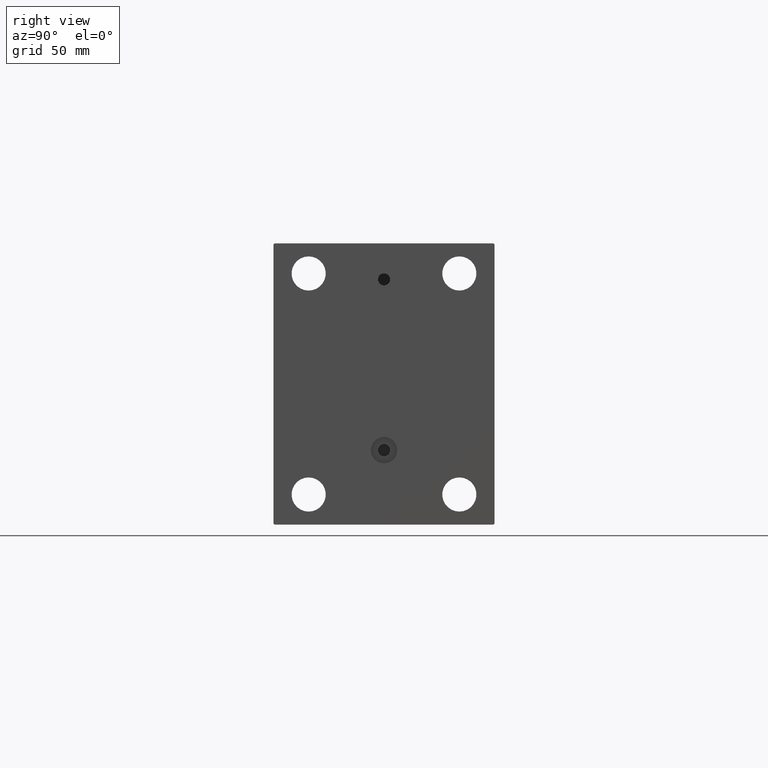
[diagram: clean part render]
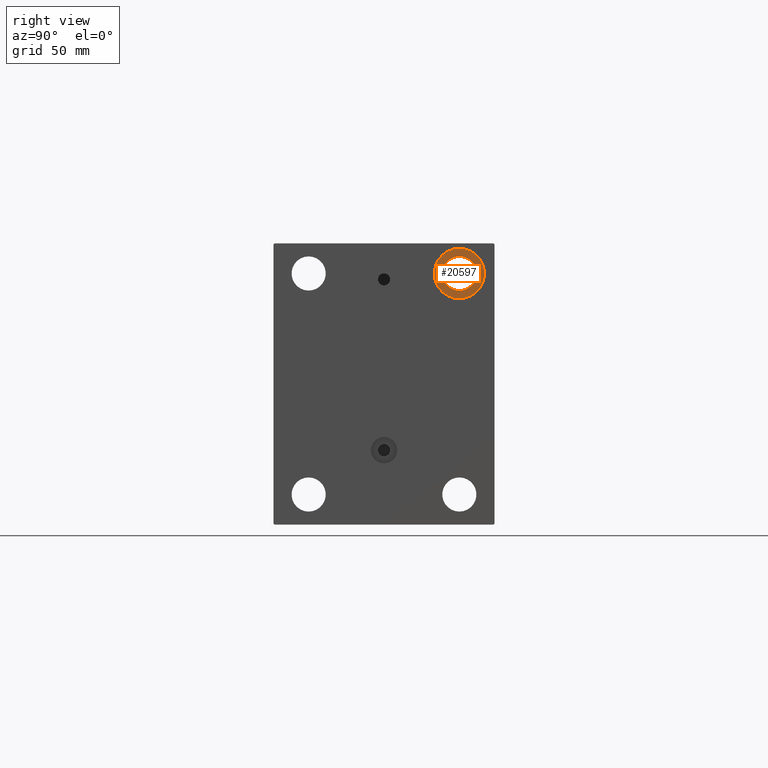
[diagram: same view with one face highlighted and labeled with its STEP entity id]
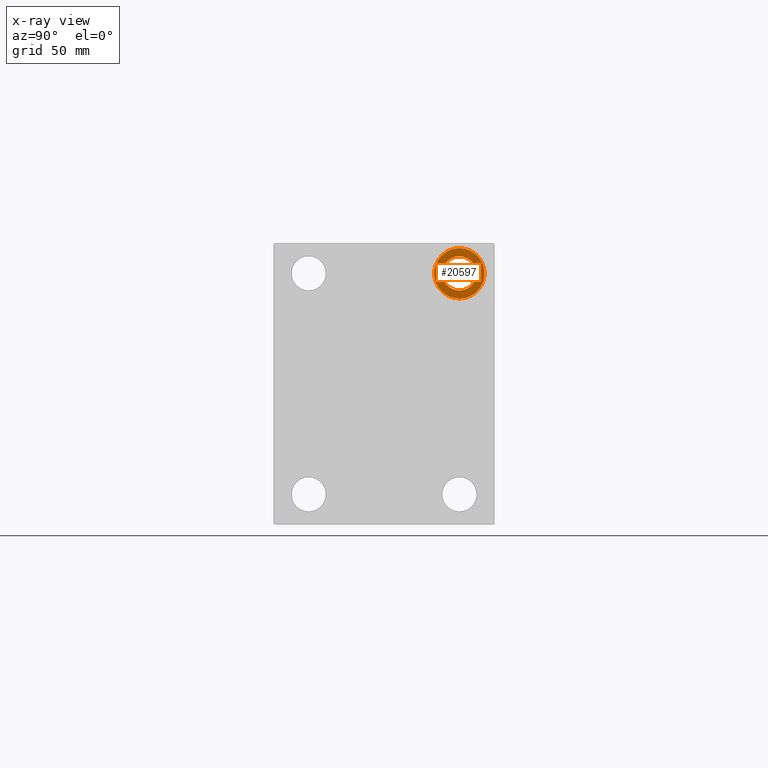
[diagram: x-ray of the same camera — body ghosted, the highlighted face saturated]
A machine part, right view. The second image highlights one B-rep face of the part: STEP entity #20597.
The next image is the same camera in x-ray: the body ghosted, the highlighted face saturated — about 0% of this face is hidden behind the body in this view.
In plain terms, the highlighted planar face has unit normal (1, 0, 0).
Its self-contained STEP definition (entity closure, byte-faithful):
#182 = AXIS2_PLACEMENT_3D ( 'NONE', #45820, #5303, #12386 ) ;
#237 = CARTESIAN_POINT ( 'NONE',  ( 176.0000000000000000, 0.000000000000000000, 0.000000000000000000 ) ) ;
#1292 = EDGE_CURVE ( 'NONE', #41062, #33003, #32563, .T. ) ;
#1804 = CARTESIAN_POINT ( 'NONE',  ( 176.0000000000000000, 37.50000000000000711, 63.50000000000000000 ) ) ;
#2476 = CARTESIAN_POINT ( 'NONE',  ( 176.0000000000000000, 37.50000000000000711, 67.50000000000000000 ) ) ;
#2637 = EDGE_LOOP ( 'NONE', ( #45966, #28536 ) ) ;
#3316 = PLANE ( 'NONE',  #44320 ) ;
#5303 = DIRECTION ( 'NONE',  ( -1.000000000000000000, -0.000000000000000000, -0.000000000000000000 ) ) ;
#7025 = CARTESIAN_POINT ( 'NONE',  ( 176.0000000000000000, 37.50000000000000711, 55.00000000000000711 ) ) ;
#10345 = DIRECTION ( 'NONE',  ( 0.000000000000000000, 0.000000000000000000, 1.000000000000000000 ) ) ;
#10941 = ORIENTED_EDGE ( 'NONE', *, *, #33287, .T. ) ;
#12164 = AXIS2_PLACEMENT_3D ( 'NONE', #41767, #18923, #33329 ) ;
#12386 = DIRECTION ( 'NONE',  ( 0.000000000000000000, 0.000000000000000000, -1.000000000000000000 ) ) ;
#18153 = FACE_OUTER_BOUND ( 'NONE', #2637, .T. ) ;
#18276 = VERTEX_POINT ( 'NONE', #2476 ) ;
#18923 = DIRECTION ( 'NONE',  ( -1.000000000000000000, -0.000000000000000000, -0.000000000000000000 ) ) ;
#20597 = ADVANCED_FACE ( 'NONE', ( #18153, #46518 ), #3316, .T. ) ;
#20932 = CARTESIAN_POINT ( 'NONE',  ( 176.0000000000000000, 37.50000000000000711, 42.50000000000000711 ) ) ;
#21922 = DIRECTION ( 'NONE',  ( 0.000000000000000000, 0.000000000000000000, 1.000000000000000000 ) ) ;
#23104 = EDGE_CURVE ( 'NONE', #32324, #18276, #39112, .T. ) ;
#26344 = CARTESIAN_POINT ( 'NONE',  ( 176.0000000000000000, 37.50000000000000711, 55.00000000000000711 ) ) ;
#26822 = DIRECTION ( 'NONE',  ( -1.000000000000000000, -0.000000000000000000, -0.000000000000000000 ) ) ;
#27223 = CIRCLE ( 'NONE', #12164, 8.499999999999992895 ) ;
#28314 = DIRECTION ( 'NONE',  ( 1.000000000000000000, 0.000000000000000000, -0.000000000000000000 ) ) ;
#28536 = ORIENTED_EDGE ( 'NONE', *, *, #29529, .F. ) ;
#29000 = DIRECTION ( 'NONE',  ( 0.000000000000000000, 0.000000000000000000, 1.000000000000000000 ) ) ;
#29529 = EDGE_CURVE ( 'NONE', #18276, #32324, #38433, .T. ) ;
#29837 = CARTESIAN_POINT ( 'NONE',  ( 176.0000000000000000, 37.50000000000000711, 46.50000000000001421 ) ) ;
#32324 = VERTEX_POINT ( 'NONE', #20932 ) ;
#32563 = CIRCLE ( 'NONE', #182, 8.499999999999992895 ) ;
#33003 = VERTEX_POINT ( 'NONE', #29837 ) ;
#33075 = AXIS2_PLACEMENT_3D ( 'NONE', #7025, #46222, #10345 ) ;
#33287 = EDGE_CURVE ( 'NONE', #33003, #41062, #27223, .T. ) ;
#33329 = DIRECTION ( 'NONE',  ( 0.000000000000000000, 0.000000000000000000, -1.000000000000000000 ) ) ;
#35686 = EDGE_LOOP ( 'NONE', ( #37488, #10941 ) ) ;
#37488 = ORIENTED_EDGE ( 'NONE', *, *, #1292, .T. ) ;
#38433 = CIRCLE ( 'NONE', #39936, 12.49999999999999645 ) ;
#39112 = CIRCLE ( 'NONE', #33075, 12.49999999999999645 ) ;
#39936 = AXIS2_PLACEMENT_3D ( 'NONE', #26344, #26822, #21922 ) ;
#41062 = VERTEX_POINT ( 'NONE', #1804 ) ;
#41767 = CARTESIAN_POINT ( 'NONE',  ( 176.0000000000000000, 37.50000000000000711, 55.00000000000000711 ) ) ;
#44320 = AXIS2_PLACEMENT_3D ( 'NONE', #237, #28314, #29000 ) ;
#45820 = CARTESIAN_POINT ( 'NONE',  ( 176.0000000000000000, 37.50000000000000711, 55.00000000000000711 ) ) ;
#45966 = ORIENTED_EDGE ( 'NONE', *, *, #23104, .F. ) ;
#46222 = DIRECTION ( 'NONE',  ( -1.000000000000000000, -0.000000000000000000, -0.000000000000000000 ) ) ;
#46518 = FACE_BOUND ( 'NONE', #35686, .T. ) ;